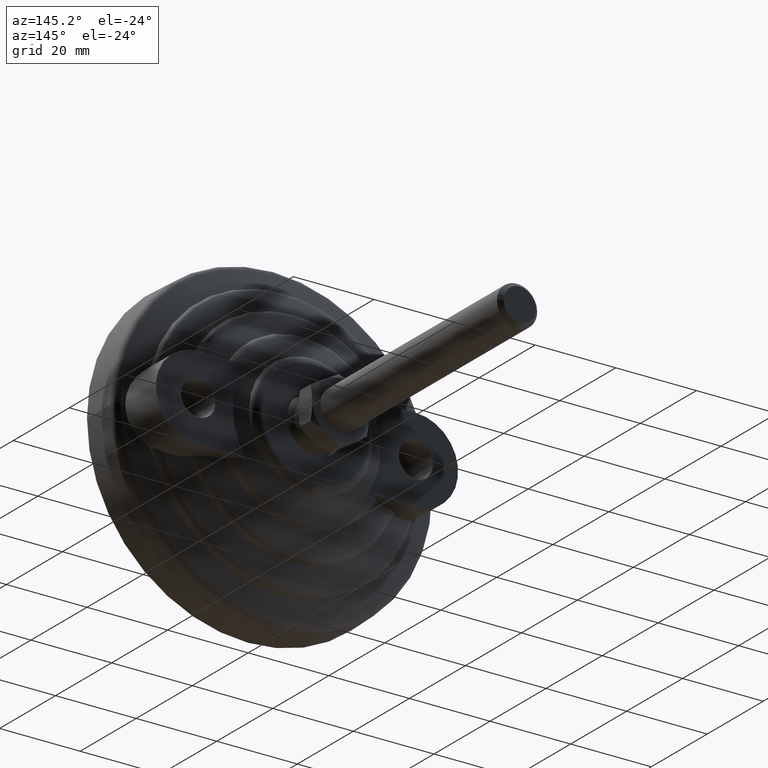
[diagram: clean part render]
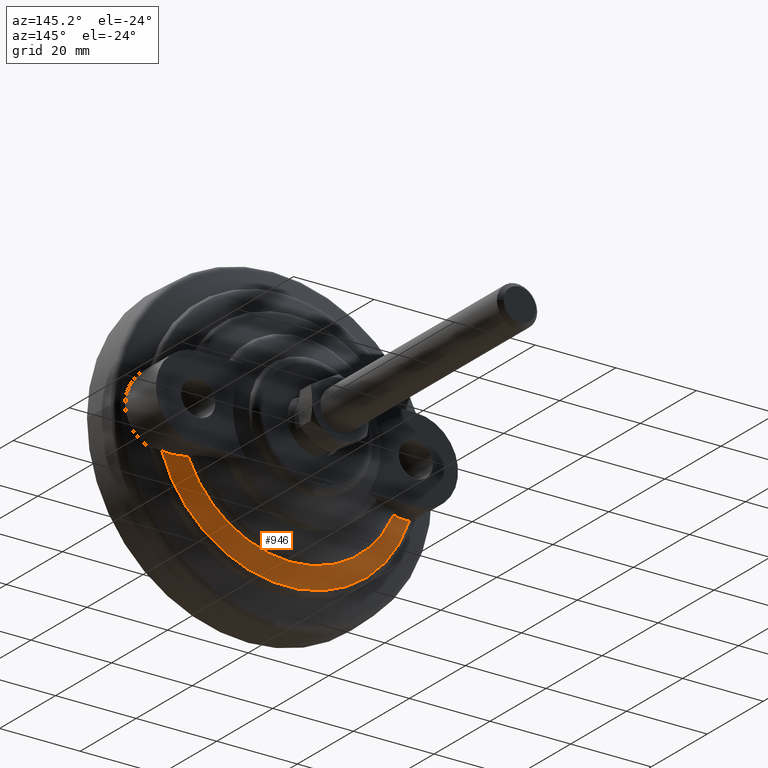
[diagram: same view with one face highlighted and labeled with its STEP entity id]
A machine part, auxiliary view. The second image highlights one B-rep face of the part: STEP entity #946.
In plain terms, the highlighted conical surface has half-angle 68.88 deg.
Its self-contained STEP definition (entity closure, byte-faithful):
#37=CONICAL_SURFACE('',#1090,29.8804665177825,1.20217691399191);
#58=(
BOUNDED_CURVE()
B_SPLINE_CURVE(2,(#1605,#1606,#1607),.UNSPECIFIED.,.F.,.F.)
B_SPLINE_CURVE_WITH_KNOTS((3,3),(0.362606543798788,0.53958314247249),
 .UNSPECIFIED.)
CURVE()
GEOMETRIC_REPRESENTATION_ITEM()
RATIONAL_B_SPLINE_CURVE((1.00159787675078,1.00118887451594,1.))
REPRESENTATION_ITEM('')
);
#66=(
BOUNDED_CURVE()
B_SPLINE_CURVE(2,(#1748,#1749,#1750),.UNSPECIFIED.,.F.,.F.)
B_SPLINE_CURVE_WITH_KNOTS((3,3),(0.,0.176976598673702),.UNSPECIFIED.)
CURVE()
GEOMETRIC_REPRESENTATION_ITEM()
RATIONAL_B_SPLINE_CURVE((1.,1.00118887451594,1.00159787675078))
REPRESENTATION_ITEM('')
);
#122=B_SPLINE_CURVE_WITH_KNOTS('',3,(#1553,#1554,#1555,#1556,#1557,#1558),
 .UNSPECIFIED.,.F.,.F.,(4,2,4),(2.8665167227233,2.96107987676726,3.25168735559793),
 .UNSPECIFIED.);
#129=B_SPLINE_CURVE_WITH_KNOTS('',3,(#1683,#1684,#1685,#1686,#1687,#1688),
 .UNSPECIFIED.,.F.,.F.,(4,2,4),(5.76722868500192,6.05783616383258,6.15239931787654),
 .UNSPECIFIED.);
#154=FACE_OUTER_BOUND('',#211,.T.);
#211=EDGE_LOOP('',(#732,#733,#734,#735,#736,#737));
#329=CIRCLE('',#1089,27.50624303865);
#330=CIRCLE('',#1091,32.254689996915);
#392=VERTEX_POINT('',#1541);
#393=VERTEX_POINT('',#1552);
#403=VERTEX_POINT('',#1593);
#404=VERTEX_POINT('',#1604);
#415=VERTEX_POINT('',#1682);
#421=VERTEX_POINT('',#1747);
#497=EDGE_CURVE('',#393,#392,#122,.T.);
#509=EDGE_CURVE('',#404,#403,#58,.T.);
#523=EDGE_CURVE('',#415,#404,#129,.T.);
#530=EDGE_CURVE('',#421,#393,#66,.T.);
#544=EDGE_CURVE('',#421,#403,#329,.T.);
#545=EDGE_CURVE('',#392,#415,#330,.T.);
#732=ORIENTED_EDGE('',*,*,#530,.T.);
#733=ORIENTED_EDGE('',*,*,#497,.T.);
#734=ORIENTED_EDGE('',*,*,#545,.T.);
#735=ORIENTED_EDGE('',*,*,#523,.T.);
#736=ORIENTED_EDGE('',*,*,#509,.T.);
#737=ORIENTED_EDGE('',*,*,#544,.F.);
#946=ADVANCED_FACE('',(#154),#37,.T.);
#1089=AXIS2_PLACEMENT_3D('',#1795,#1274,#1275);
#1090=AXIS2_PLACEMENT_3D('',#1796,#1276,#1277);
#1091=AXIS2_PLACEMENT_3D('',#1797,#1278,#1279);
#1274=DIRECTION('center_axis',(0.,1.,0.));
#1275=DIRECTION('ref_axis',(-1.,0.,0.));
#1276=DIRECTION('center_axis',(0.,-1.,0.));
#1277=DIRECTION('ref_axis',(-1.,0.,0.));
#1278=DIRECTION('center_axis',(0.,1.,0.));
#1279=DIRECTION('ref_axis',(-1.,0.,0.));
#1541=CARTESIAN_POINT('',(30.7243523480942,13.353673555576,-9.81729084764454));
#1552=CARTESIAN_POINT('',(27.,14.6225422536565,-10.5));
#1553=CARTESIAN_POINT('Ctrl Pts',(27.,14.6225422536565,-10.5));
#1554=CARTESIAN_POINT('Ctrl Pts',(27.3100625601747,14.5109163877395,-10.5));
#1555=CARTESIAN_POINT('Ctrl Pts',(27.6208747110214,14.4006946398294,-10.4862470382709));
#1556=CARTESIAN_POINT('Ctrl Pts',(28.8835374298768,13.9591533364495,-10.373863285386));
#1557=CARTESIAN_POINT('Ctrl Pts',(29.830006323037,13.6428573128391,-10.1565758673228));
#1558=CARTESIAN_POINT('Ctrl Pts',(30.7243523480942,13.353673555576,-9.81729084764453));
#1593=CARTESIAN_POINT('',(-25.4232847228929,15.187883375214,-10.5));
#1604=CARTESIAN_POINT('',(-27.,14.6225422536565,-10.5));
#1605=CARTESIAN_POINT('Ctrl Pts',(-27.,14.6225422536565,-10.5));
#1606=CARTESIAN_POINT('Ctrl Pts',(-26.1912121867038,14.9137145898182,-10.5));
#1607=CARTESIAN_POINT('Ctrl Pts',(-25.4232847228929,15.187883375214,-10.5));
#1682=CARTESIAN_POINT('',(-30.7243523480942,13.353673555576,-9.81729084764454));
#1683=CARTESIAN_POINT('Ctrl Pts',(-30.7243523480942,13.353673555576,-9.81729084764453));
#1684=CARTESIAN_POINT('Ctrl Pts',(-29.830006323037,13.6428573128391,-10.1565758673228));
#1685=CARTESIAN_POINT('Ctrl Pts',(-28.8835374298768,13.9591533364495,-10.373863285386));
#1686=CARTESIAN_POINT('Ctrl Pts',(-27.6208747110214,14.4006946398294,-10.4862470382709));
#1687=CARTESIAN_POINT('Ctrl Pts',(-27.3100625601747,14.5109163877395,-10.5));
#1688=CARTESIAN_POINT('Ctrl Pts',(-27.,14.6225422536565,-10.5));
#1747=CARTESIAN_POINT('',(25.4232847228929,15.187883375214,-10.5));
#1748=CARTESIAN_POINT('Ctrl Pts',(25.4232847228929,15.187883375214,-10.5));
#1749=CARTESIAN_POINT('Ctrl Pts',(26.1912121867038,14.9137145898182,-10.5));
#1750=CARTESIAN_POINT('Ctrl Pts',(27.,14.6225422536565,-10.5));
#1795=CARTESIAN_POINT('Origin',(0.,15.187883375214,0.));
#1796=CARTESIAN_POINT('Origin',(0.,14.270778465395,0.));
#1797=CARTESIAN_POINT('Origin',(0.,13.353673555576,0.));